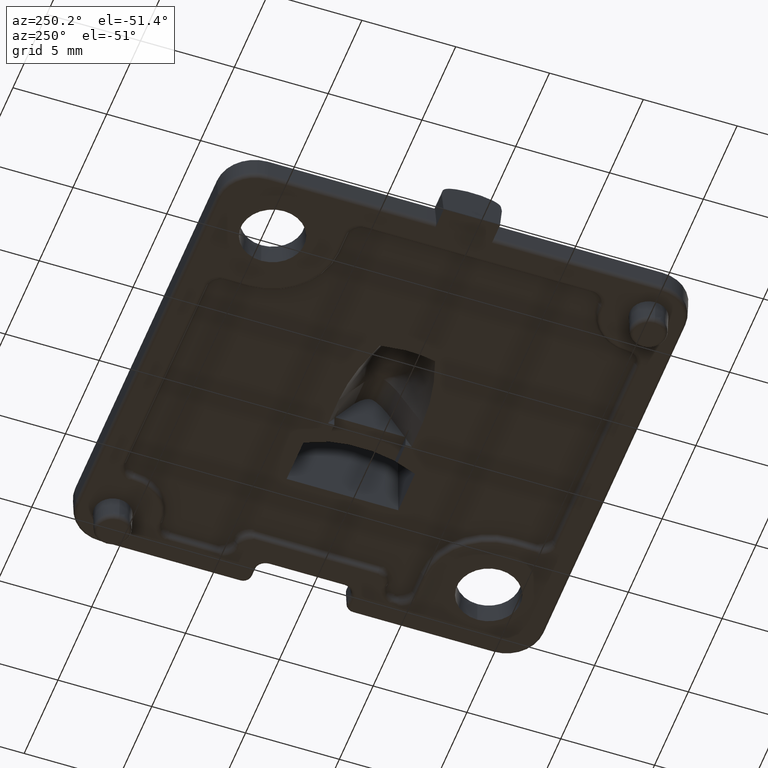
[diagram: clean part render]
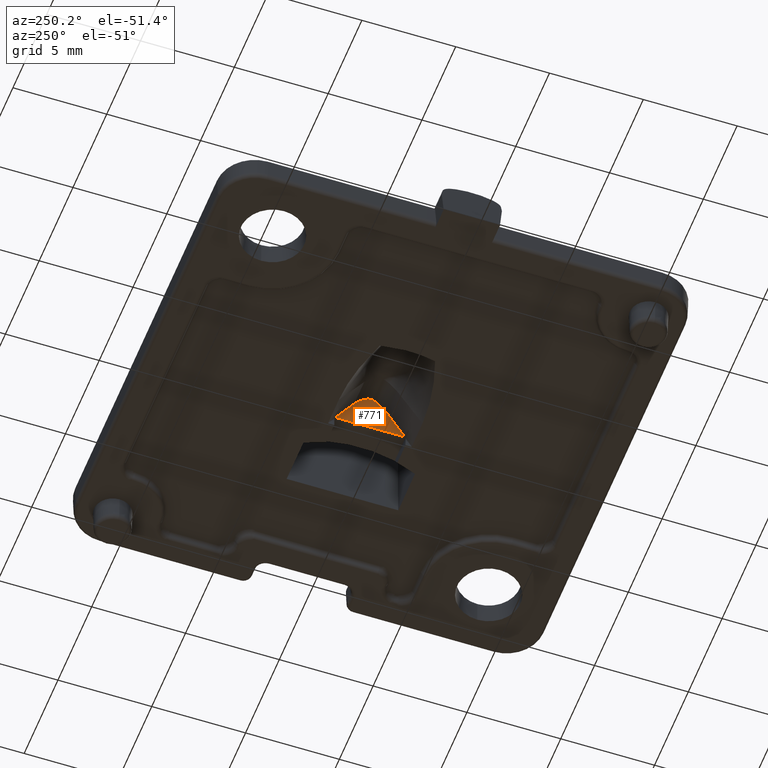
[diagram: same view with one face highlighted and labeled with its STEP entity id]
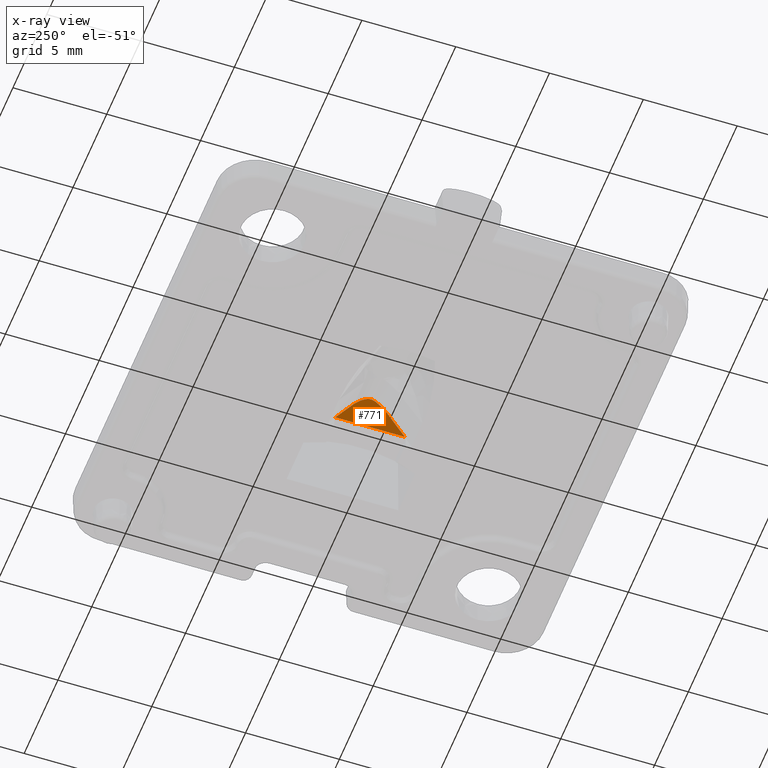
[diagram: x-ray of the same camera — body ghosted, the highlighted face saturated]
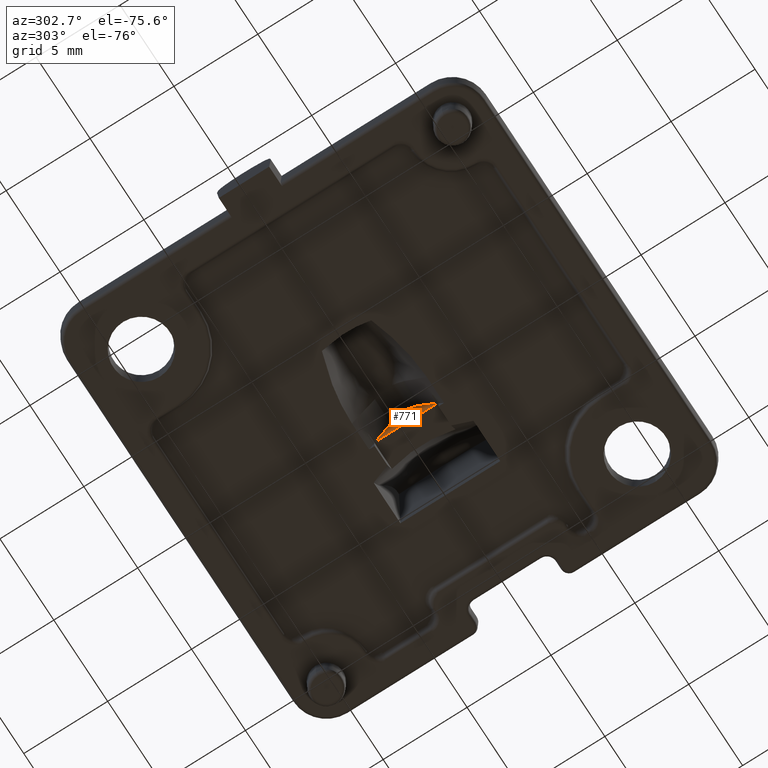
[diagram: same view with one face highlighted and labeled with its STEP entity id]
A machine part, auxiliary view. The second image highlights one B-rep face of the part: STEP entity #771.
The next image is the same camera in x-ray: the body ghosted, the highlighted face saturated — about 0% of this face is hidden behind the body in this view.
A second angle (auxiliary view) of the same face is appended — the face is thin or edge-on in the first view.
In plain terms, the highlighted planar face has unit normal (-0.9986, -0, -0.0523).
Its self-contained STEP definition (entity closure, byte-faithful):
#28 = DIRECTION ( 'NONE',  ( -0.9986295347545739400, -1.488755015371838400E-016, -0.05233595624294396600 ) ) ;
#159 = ORIENTED_EDGE ( 'NONE', *, *, #5724, .T. ) ;
#185 = CARTESIAN_POINT ( 'NONE',  ( 1.455362243796458600, -0.1844365516358085800, 3.459852796326145200 ) ) ;
#637 = PLANE ( 'NONE',  #1369 ) ;
#649 = VERTEX_POINT ( 'NONE', #5428 ) ;
#665 = CARTESIAN_POINT ( 'NONE',  ( 1.455360186552023800, 0.1843899696213328900, 3.459892050888324200 ) ) ;
#771 = ADVANCED_FACE ( 'NONE', ( #1303 ), #637, .T. ) ;
#828 = EDGE_CURVE ( 'NONE', #5437, #649, #4983, .T. ) ;
#951 = VERTEX_POINT ( 'NONE', #7553 ) ;
#961 = CARTESIAN_POINT ( 'NONE',  ( 1.453258371516926500, -0.09572324651753545700, 3.499997070865347800 ) ) ;
#1089 = B_SPLINE_CURVE_WITH_KNOTS ( 'NONE', 3,
 ( #5578, #4362, #2462, #6789, #3100, #7425 ),
 .UNSPECIFIED., .F., .F.,
 ( 4, 2, 4 ),
 ( 0.0000000000000000000, 0.0008658084553078561200, 0.001731616910615712200 ),
 .UNSPECIFIED. ) ;
#1291 = VECTOR ( 'NONE', #3698, 1000.000000000000000 ) ;
#1292 = CARTESIAN_POINT ( 'NONE',  ( 1.463581383773753900, 0.4186849631656591200, 3.303022262961640800 ) ) ;
#1303 = FACE_OUTER_BOUND ( 'NONE', #7954, .T. ) ;
#1369 = AXIS2_PLACEMENT_3D ( 'NONE', #4468, #28, #3737 ) ;
#1617 = ORIENTED_EDGE ( 'NONE', *, *, #7416, .F. ) ;
#1692 = EDGE_CURVE ( 'NONE', #4568, #5437, #6888, .T. ) ;
#1726 = CARTESIAN_POINT ( 'NONE',  ( 1.463578308144509500, -0.4186060077010367900, 3.303080949465717200 ) ) ;
#1917 = CARTESIAN_POINT ( 'NONE',  ( 1.480936712433541700, 0.7509336427930672900, 2.971862864545884000 ) ) ;
#2446 = CARTESIAN_POINT ( 'NONE',  ( 1.550529179236251200, -1.694867535216475500, 1.643959493047188400 ) ) ;
#2462 = CARTESIAN_POINT ( 'NONE',  ( 1.512703078559324500, 1.217263341152140100, 2.365724490427409100 ) ) ;
#2515 = CARTESIAN_POINT ( 'NONE',  ( 1.453258218007484200, -1.462505779055942900E-015, 3.500000000000001800 ) ) ;
#2733 = CARTESIAN_POINT ( 'NONE',  ( 1.460447057402857400, -0.3448045574511460800, 3.362828772870834800 ) ) ;
#2816 = ORIENTED_EDGE ( 'NONE', *, *, #3499, .T. ) ;
#3100 = CARTESIAN_POINT ( 'NONE',  ( 1.550528201431748700, 1.694857172903105000, 1.643978150668565300 ) ) ;
#3238 = CARTESIAN_POINT ( 'NONE',  ( 1.488597817592583400, 0.8692102914227531900, 2.825680269827150600 ) ) ;
#3333 = CARTESIAN_POINT ( 'NONE',  ( 1.563314554501871600, -1.848797958652047300, 1.399999999999999900 ) ) ;
#3437 = CARTESIAN_POINT ( 'NONE',  ( 1.473502051811679700, -0.6269113234545447000, 3.113724640098475900 ) ) ;
#3499 = EDGE_CURVE ( 'NONE', #649, #5790, #5027, .T. ) ;
#3698 = DIRECTION ( 'NONE',  ( -1.490798102359068700E-016, 1.000000000000000000, -0.0000000000000000000 ) ) ;
#3737 = DIRECTION ( 'NONE',  ( -0.05233595624294396600, 0.0000000000000000000, 0.9986295347545739400 ) ) ;
#3741 = CARTESIAN_POINT ( 'NONE',  ( 1.512707273548848000, -1.217316279375360700, 2.365644445258888100 ) ) ;
#4362 = CARTESIAN_POINT ( 'NONE',  ( 1.500361312434060500, 1.050837114239175700, 2.601219416831540300 ) ) ;
#4368 = CARTESIAN_POINT ( 'NONE',  ( 1.488602914491368400, -0.8692854703719518100, 2.825583015204748100 ) ) ;
#4468 = CARTESIAN_POINT ( 'NONE',  ( 1.600000000000000800, -3.290970091564648900, 0.7000000000000012900 ) ) ;
#4568 = VERTEX_POINT ( 'NONE', #3333 ) ;
#4983 = B_SPLINE_CURVE_WITH_KNOTS ( 'NONE', 3,
 ( #7598, #6412, #3437, #1726, #2733, #185, #961, #5285 ),
 .UNSPECIFIED., .F., .F.,
 ( 4, 2, 2, 4 ),
 ( 0.003158373785996354300, 0.003735113580047962800, 0.004023483477073768100, 0.004311853374099572500 ),
 .UNSPECIFIED. ) ;
#5027 = B_SPLINE_CURVE_WITH_KNOTS ( 'NONE', 3,
 ( #2515, #8106, #665, #5029, #1292, #5658, #1917, #6267 ),
 .UNSPECIFIED., .F., .F.,
 ( 4, 2, 2, 4 ),
 ( 0.001474855402311913300, 0.001762331060117655000, 0.002049806717923396900, 0.002624758033534879300 ),
 .UNSPECIFIED. ) ;
#5029 = CARTESIAN_POINT ( 'NONE',  ( 1.460454058984572700, 0.3450097335870959700, 3.362695174733000100 ) ) ;
#5285 = CARTESIAN_POINT ( 'NONE',  ( 1.453258218007484200, -1.462505779055942900E-015, 3.500000000000001800 ) ) ;
#5428 = CARTESIAN_POINT ( 'NONE',  ( 1.453258218007484200, -1.462505779055942900E-015, 3.500000000000001800 ) ) ;
#5437 = VERTEX_POINT ( 'NONE', #7023 ) ;
#5578 = CARTESIAN_POINT ( 'NONE',  ( 1.488597817592583400, 0.8692102914227531900, 2.825680269827150600 ) ) ;
#5658 = CARTESIAN_POINT ( 'NONE',  ( 1.473517009653146200, 0.6272025798713772900, 3.113439227478833200 ) ) ;
#5724 = EDGE_CURVE ( 'NONE', #5790, #951, #1089, .T. ) ;
#5790 = VERTEX_POINT ( 'NONE', #3238 ) ;
#5912 = ORIENTED_EDGE ( 'NONE', *, *, #1692, .T. ) ;
#6267 = CARTESIAN_POINT ( 'NONE',  ( 1.488597817592583400, 0.8692102914227531900, 2.825680269827150600 ) ) ;
#6412 = CARTESIAN_POINT ( 'NONE',  ( 1.480942876251219100, -0.7510307348299916100, 2.971745251898256300 ) ) ;
#6759 = CARTESIAN_POINT ( 'NONE',  ( 1.563314554501871800, -3.290970091564648900, 1.399999999999999900 ) ) ;
#6772 = CARTESIAN_POINT ( 'NONE',  ( 1.563314554501871600, -1.848797958652047300, 1.399999999999999900 ) ) ;
#6789 = CARTESIAN_POINT ( 'NONE',  ( 1.537779382460786800, 1.539791292766748100, 1.887240108060587600 ) ) ;
#6888 = B_SPLINE_CURVE_WITH_KNOTS ( 'NONE', 3,
 ( #6772, #2446, #7402, #3741, #8033, #4368 ),
 .UNSPECIFIED., .F., .F.,
 ( 4, 2, 4 ),
 ( 0.0008336240001633954900, 0.001699825187828389400, 0.002566026375493384500 ),
 .UNSPECIFIED. ) ;
#7023 = CARTESIAN_POINT ( 'NONE',  ( 1.488602914491368400, -0.8692854703719518100, 2.825583015204748100 ) ) ;
#7402 = CARTESIAN_POINT ( 'NONE',  ( 1.537781701976388900, -1.539817784285615600, 1.887195849066331000 ) ) ;
#7416 = EDGE_CURVE ( 'NONE', #4568, #951, #7698, .T. ) ;
#7425 = CARTESIAN_POINT ( 'NONE',  ( 1.563314554501871200, 1.848799004093735700, 1.400000000000000100 ) ) ;
#7460 = ORIENTED_EDGE ( 'NONE', *, *, #828, .T. ) ;
#7553 = CARTESIAN_POINT ( 'NONE',  ( 1.563314554501871200, 1.848799004093735700, 1.400000000000000100 ) ) ;
#7598 = CARTESIAN_POINT ( 'NONE',  ( 1.488602914491368400, -0.8692854703719518100, 2.825583015204748100 ) ) ;
#7698 = LINE ( 'NONE', #6759, #1291 ) ;
#7954 = EDGE_LOOP ( 'NONE', ( #1617, #5912, #7460, #2816, #159 ) ) ;
#8033 = CARTESIAN_POINT ( 'NONE',  ( 1.500365234614338100, -1.050887090018681700, 2.601144577173557500 ) ) ;
#8106 = CARTESIAN_POINT ( 'NONE',  ( 1.453258359567936000, 0.09582513061514286200, 3.499997298865821000 ) ) ;